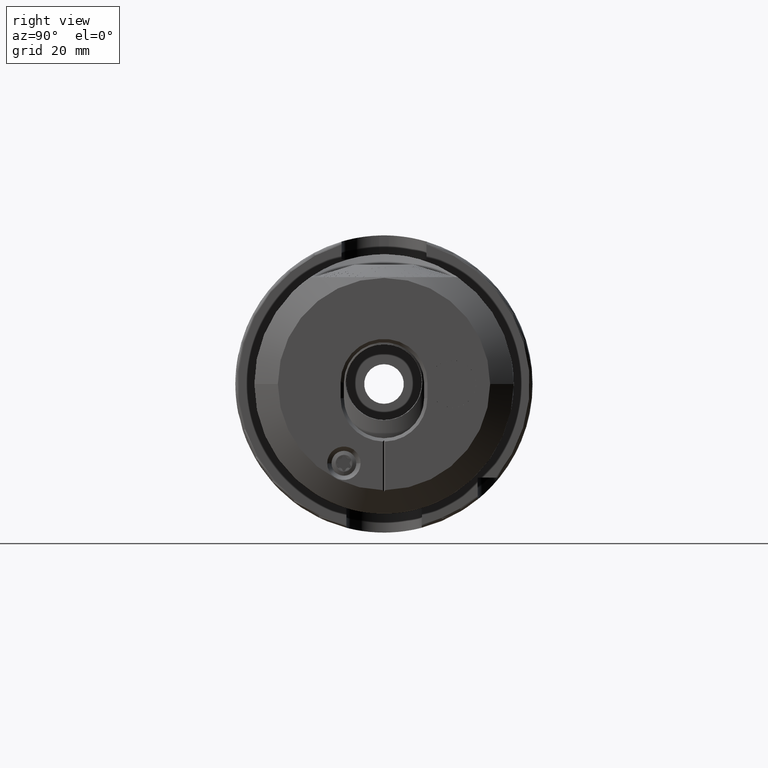
[diagram: clean part render]
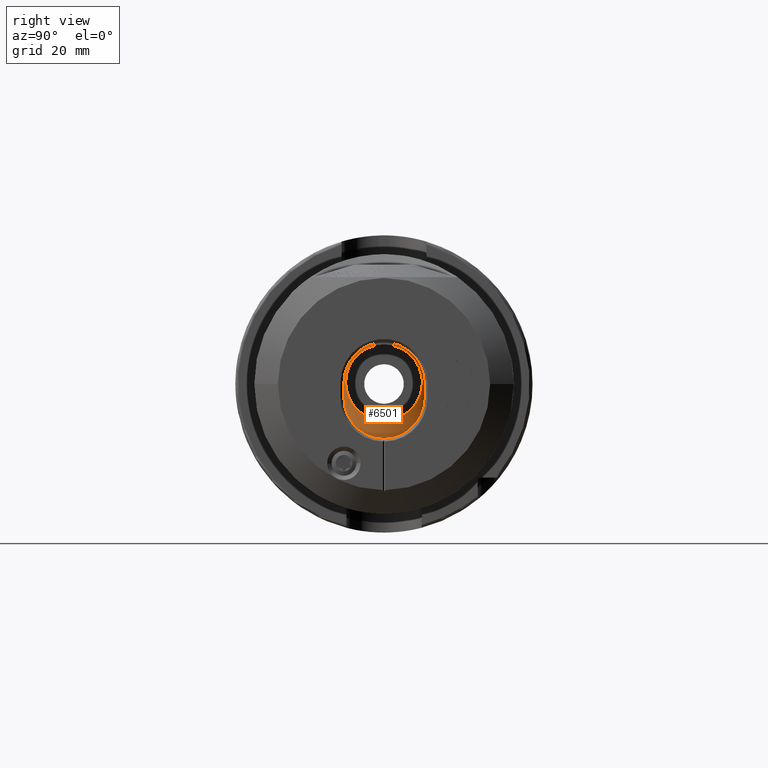
[diagram: same view with one face highlighted and labeled with its STEP entity id]
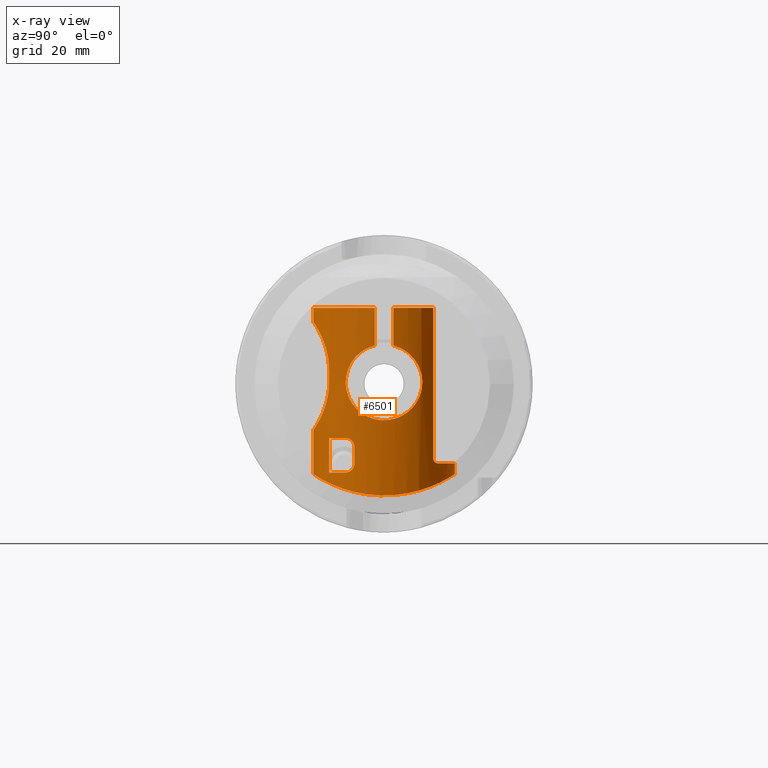
[diagram: x-ray of the same camera — body ghosted, the highlighted face saturated]
A machine part, right view. The second image highlights one B-rep face of the part: STEP entity #6501.
The next image is the same camera in x-ray: the body ghosted, the highlighted face saturated — about 0% of this face is hidden behind the body in this view.
In plain terms, the highlighted cylindrical surface (partial cylindrical patch) has radius 15 mm, axis along (0, -0, -1).
Its self-contained STEP definition (entity closure, byte-faithful):
#151 = CARTESIAN_POINT ( 'NONE',  ( -12.37471025492972600, 9.442288107407167200, -11.65517930191791000 ) ) ;
#181 = CARTESIAN_POINT ( 'NONE',  ( -9.301512783879902100, 14.21343242897927800, -4.809250000802320500 ) ) ;
#310 = CARTESIAN_POINT ( 'NONE',  ( -10.25717086842585100, 13.79683004734305200, -5.886800240852834600 ) ) ;
#324 = CARTESIAN_POINT ( 'NONE',  ( -8.613712463206155700, 14.54900527834374400, 3.675112681663716100 ) ) ;
#346 = CARTESIAN_POINT ( 'NONE',  ( -32.00000000000000000, 10.75975848779969700, 10.45120075800968900 ) ) ;
#530 = CARTESIAN_POINT ( 'NONE',  ( -28.52620174459903200, 13.49993225388090900, -6.539714428379788600 ) ) ;
#587 = ORIENTED_EDGE ( 'NONE', *, *, #5746, .T. ) ;
#640 = CARTESIAN_POINT ( 'NONE',  ( -35.87738500971009600, 5.362626504160033400, -14.01725516954192400 ) ) ;
#681 = CIRCLE ( 'NONE', #1897, 14.99999999999999600 ) ;
#740 = CARTESIAN_POINT ( 'NONE',  ( -33.00000000000000000, -8.342058536182039100E-031, 14.99999999999999600 ) ) ;
#946 = CARTESIAN_POINT ( 'NONE',  ( -15.72500000000000300, 9.470721524846995400, -11.63208639061796700 ) ) ;
#1034 = CARTESIAN_POINT ( 'NONE',  ( -39.26319599122587100, 14.01166443118379400, -5.376887497293374500 ) ) ;
#1293 = CARTESIAN_POINT ( 'NONE',  ( -37.91442549891312600, 11.27437854117504700, 9.940269095810307900 ) ) ;
#1561 = CARTESIAN_POINT ( 'NONE',  ( -39.79923060918474000, 14.99861509563593400, -1.019673894737937300 ) ) ;
#1676 = CARTESIAN_POINT ( 'NONE',  ( -33.16279263568744500, 0.0000000000000000000, 14.99999999999999600 ) ) ;
#1737 = CARTESIAN_POINT ( 'NONE',  ( -18.37920622593016200, 9.201860031619840900, -11.84631666124780300 ) ) ;
#1897 = AXIS2_PLACEMENT_3D ( 'NONE', #18673, #18287, #37077 ) ;
#1987 = CARTESIAN_POINT ( 'NONE',  ( -16.31176837765001500, 9.458289227069835500, -11.64219831928277800 ) ) ;
#2008 = CARTESIAN_POINT ( 'NONE',  ( 0.0000000000000000000, 1.836970198721029600E-015, -15.00000000000000000 ) ) ;
#2009 = VECTOR ( 'NONE', #35996, 1000.000000000000000 ) ;
#2020 = CARTESIAN_POINT ( 'NONE',  ( -34.95000000000000300, 12.68348118623161400, -8.013099669456698500 ) ) ;
#2078 = CARTESIAN_POINT ( 'NONE',  ( -23.16027519750199200, 14.63798168521102700, 3.276173762378265900 ) ) ;
#2207 = CARTESIAN_POINT ( 'NONE',  ( -19.13292420091946500, 13.05484689751725300, -7.387328212118211100 ) ) ;
#2334 = CARTESIAN_POINT ( 'NONE',  ( -21.29407217246319600, 13.77579620944661600, 5.938766541206915900 ) ) ;
#2462 = CARTESIAN_POINT ( 'NONE',  ( -19.04410408005437100, 13.03226876215496000, -7.426991124238788300 ) ) ;
#2591 = CARTESIAN_POINT ( 'NONE',  ( -23.83959737832989500, 14.99791714646631000, 0.2840819914555872700 ) ) ;
#2668 = CARTESIAN_POINT ( 'NONE',  ( -13.11324154752043600, 9.468277819591973500, -11.63407602955133900 ) ) ;
#2809 = VERTEX_POINT ( 'NONE', #6898 ) ;
#2849 = LINE ( 'NONE', #17422, #6175 ) ;
#2875 = ORIENTED_EDGE ( 'NONE', *, *, #20405, .T. ) ;
#3088 = CARTESIAN_POINT ( 'NONE',  ( -28.30593880238340500, 13.42118498889231200, -6.702242767157170700 ) ) ;
#3218 = CARTESIAN_POINT ( 'NONE',  ( -12.73633261386497800, 9.458163387414737500, -11.64229983125459400 ) ) ;
#3243 = CARTESIAN_POINT ( 'NONE',  ( -12.63198848006419400, 13.01422426244601400, -7.458591699829690400 ) ) ;
#3260 = CARTESIAN_POINT ( 'NONE',  ( -32.00000000000000000, 10.75975848779969700, 10.45120075800968900 ) ) ;
#3377 = CARTESIAN_POINT ( 'NONE',  ( -12.37847949638197100, 13.07742610568231500, -7.348109774336633000 ) ) ;
#3388 = VERTEX_POINT ( 'NONE', #17202 ) ;
#3395 = CARTESIAN_POINT ( 'NONE',  ( -14.03540588863491000, 12.70960542757835700, 7.974425350658122200 ) ) ;
#3523 = CARTESIAN_POINT ( 'NONE',  ( -8.049118419280947700, 14.84112780363143000, 2.188678712657428500 ) ) ;
#3593 = CARTESIAN_POINT ( 'NONE',  ( -35.26683763278331400, 1.004627370038822600, -14.97480875451876900 ) ) ;
#3630 = VERTEX_POINT ( 'NONE', #946 ) ;
#3632 = VERTEX_POINT ( 'NONE', #19170 ) ;
#3717 = CARTESIAN_POINT ( 'NONE',  ( -37.04506917630257600, 9.161915042311381500, -11.88661565863466400 ) ) ;
#3740 = CARTESIAN_POINT ( 'NONE',  ( -9.690437268659373200, 8.975265734551207700, -12.01854373297700800 ) ) ;
#3910 = CARTESIAN_POINT ( 'NONE',  ( -9.572688480611443400, 14.08864182249268600, 5.160921636131780200 ) ) ;
#4236 = CARTESIAN_POINT ( 'NONE',  ( -39.80037293001903700, 15.00067127447567600, 0.4789663086088108400 ) ) ;
#4440 = VERTEX_POINT ( 'NONE', #36360 ) ;
#4470 = VERTEX_POINT ( 'NONE', #26863 ) ;
#4497 = CARTESIAN_POINT ( 'NONE',  ( -36.22546301376076600, 6.702076909008169100, 13.42823656979112800 ) ) ;
#4506 = CARTESIAN_POINT ( 'NONE',  ( -33.16279263568744500, 1.836970198721029200E-015, -14.99999999999999600 ) ) ;
#4761 = CARTESIAN_POINT ( 'NONE',  ( -39.36910348450332000, 14.21353068008605500, 4.895005375146374700 ) ) ;
#4799 = CARTESIAN_POINT ( 'NONE',  ( -25.64666289508045000, 2.648321990101079900, -14.77911398047497500 ) ) ;
#4932 = CARTESIAN_POINT ( 'NONE',  ( -18.05271592443200700, 9.266080820817148100, -11.79593140214900700 ) ) ;
#5018 = CARTESIAN_POINT ( 'NONE',  ( -16.84629768831189300, 12.64449151875729000, 8.070453684743412700 ) ) ;
#5141 = CARTESIAN_POINT ( 'NONE',  ( -23.42133161734608000, 14.77207011583307200, 2.654647613718924300 ) ) ;
#5184 = CARTESIAN_POINT ( 'NONE',  ( -16.02870361605151200, 9.467416094030872000, -11.63477686058441300 ) ) ;
#5214 = CARTESIAN_POINT ( 'NONE',  ( -32.94999999999999600, 13.63589014329463800, -6.249999999999999100 ) ) ;
#5245 = CARTESIAN_POINT ( 'NONE',  ( -34.94999999999999600, 12.52746981636754400, -8.250000000000000000 ) ) ;
#5264 = CARTESIAN_POINT ( 'NONE',  ( -23.26652041267151800, 14.69522909442261800, -3.009068004769385000 ) ) ;
#5425 = CARTESIAN_POINT ( 'NONE',  ( -33.16279263568744500, 14.86999999999999900, 1.970558296524081100 ) ) ;
#5526 = CARTESIAN_POINT ( 'NONE',  ( -18.95672752069706500, 13.01040371912945500, -7.465228634356815700 ) ) ;
#5657 = CARTESIAN_POINT ( 'NONE',  ( -21.58112060954452700, 13.89621759629753200, -5.647810274143751000 ) ) ;
#5731 = CARTESIAN_POINT ( 'NONE',  ( -13.01545317345302300, 9.465969491415521000, -11.63595416931169900 ) ) ;
#5746 = EDGE_CURVE ( 'NONE', #14436, #25952, #15475, .T. ) ;
#5822 = EDGE_CURVE ( 'NONE', #16903, #4470, #30087, .T. ) ;
#5869 = CARTESIAN_POINT ( 'NONE',  ( -10.56524652536335800, 9.200118834594839300, -11.84766900639834500 ) ) ;
#5893 = CARTESIAN_POINT ( 'NONE',  ( -11.19065235285043200, 13.43883049609872400, -6.669999077173130800 ) ) ;
#5914 = ORIENTED_EDGE ( 'NONE', *, *, #21015, .T. ) ;
#6001 = CARTESIAN_POINT ( 'NONE',  ( -12.75112070785519900, 9.458646697894318200, -11.64190717801716700 ) ) ;
#6005 = CARTESIAN_POINT ( 'NONE',  ( -27.60000000000000100, 12.68370871509590500, -8.012754171156117900 ) ) ;
#6132 = CARTESIAN_POINT ( 'NONE',  ( -11.56722124388049300, 9.366643695439551100, -11.71606616442665100 ) ) ;
#6175 = VECTOR ( 'NONE', #29028, 1000.000000000000000 ) ;
#6293 = CARTESIAN_POINT ( 'NONE',  ( -15.81779772666971900, 12.61074465361038400, -8.122137605423647600 ) ) ;
#6373 = ORIENTED_EDGE ( 'NONE', *, *, #18984, .F. ) ;
#6432 = CARTESIAN_POINT ( 'NONE',  ( -8.343939833303654300, 14.68705706270461800, -3.055363721445292200 ) ) ;
#6501 = ADVANCED_FACE ( 'NONE', ( #12632, #27340 ), #37386, .T. ) ;
#6560 = ORIENTED_EDGE ( 'NONE', *, *, #15682, .T. ) ;
#6578 = CARTESIAN_POINT ( 'NONE',  ( -8.823708505305987200, 14.44308259496676800, 4.067995332871380900 ) ) ;
#6651 = CARTESIAN_POINT ( 'NONE',  ( -35.51200897982335600, 3.473846924715372700, -14.60063444913102000 ) ) ;
#6802 = CARTESIAN_POINT ( 'NONE',  ( -9.456935181929498700, 8.903829153112196700, -12.07156678303612900 ) ) ;
#6847 = EDGE_CURVE ( 'NONE', #27125, #38297, #35467, .T. ) ;
#6898 = CARTESIAN_POINT ( 'NONE',  ( 0.0000000000000000000, 14.86999999999999600, -1.970558296524135900 ) ) ;
#7045 = CARTESIAN_POINT ( 'NONE',  ( -34.94999999999999600, 0.0000000000000000000, 0.0000000000000000000 ) ) ;
#7098 = ORIENTED_EDGE ( 'NONE', *, *, #32087, .T. ) ;
#7175 = CARTESIAN_POINT ( 'NONE',  ( -39.50776938995631600, 14.46746917463244800, -3.969233104569034800 ) ) ;
#7235 = CARTESIAN_POINT ( 'NONE',  ( -27.60000000000000100, 12.52746981636754400, -8.250000000000000000 ) ) ;
#7301 = ORIENTED_EDGE ( 'NONE', *, *, #27116, .F. ) ;
#7306 = CARTESIAN_POINT ( 'NONE',  ( -38.96574481950088400, 13.44445597198853500, 6.725484044566708300 ) ) ;
#7316 = EDGE_CURVE ( 'NONE', #2809, #28313, #7360, .T. ) ;
#7360 = CIRCLE ( 'NONE', #26411, 15.00000000000000000 ) ;
#7371 = LINE ( 'NONE', #4506, #25413 ) ;
#7442 = CARTESIAN_POINT ( 'NONE',  ( -37.33468301194275100, 9.916043255541142200, 11.29569153885971400 ) ) ;
#7567 = CARTESIAN_POINT ( 'NONE',  ( -38.20321773367927400, 11.89736935989017900, 9.186373923583172300 ) ) ;
#7737 = CARTESIAN_POINT ( 'NONE',  ( -15.80000000000000100, 12.61073184761641400, 8.122157488470223900 ) ) ;
#7750 = VERTEX_POINT ( 'NONE', #31894 ) ;
#7825 = CARTESIAN_POINT ( 'NONE',  ( -18.87463983517932700, 12.99072222678592100, 7.499423482753524400 ) ) ;
#8122 = CARTESIAN_POINT ( 'NONE',  ( -16.14385292318204200, 9.464437130269914200, -11.63720035266794100 ) ) ;
#8202 = CARTESIAN_POINT ( 'NONE',  ( -23.73637437069690000, 14.94103583059491800, 1.354633808849409000 ) ) ;
#8246 = CARTESIAN_POINT ( 'NONE',  ( -16.00256592184154100, 9.467954163437106300, -11.63433900044847900 ) ) ;
#8333 = CARTESIAN_POINT ( 'NONE',  ( -22.76253377398981600, 14.43660420948720700, -4.097778502275449600 ) ) ;
#8451 = CARTESIAN_POINT ( 'NONE',  ( -23.63571037642151400, 14.88832168430319500, -1.846012965201699700 ) ) ;
#8479 = DIRECTION ( 'NONE',  ( -1.000000000000000000, -0.0000000000000000000, -0.0000000000000000000 ) ) ;
#8497 = CARTESIAN_POINT ( 'NONE',  ( -15.72500000000000300, 9.470721524846995400, -11.63208639061796700 ) ) ;
#8577 = CARTESIAN_POINT ( 'NONE',  ( -16.34518371495332900, 12.61153820627699300, -8.120905504893725500 ) ) ;
#8600 = EDGE_LOOP ( 'NONE', ( #16818, #7098, #28419, #12716, #38920, #587 ) ) ;
#8677 = CARTESIAN_POINT ( 'NONE',  ( -13.22500000000000500, 9.470721524846995400, -11.63208639061796700 ) ) ;
#8711 = CARTESIAN_POINT ( 'NONE',  ( -16.86834702333775500, 12.64625819601120000, -8.067708542220058700 ) ) ;
#8792 = CARTESIAN_POINT ( 'NONE',  ( -12.73093032649298100, 9.457983537778782000, -11.64244593739096200 ) ) ;
#8795 = LINE ( 'NONE', #31663, #21154 ) ;
#8922 = CARTESIAN_POINT ( 'NONE',  ( -10.08456779257387100, 9.084387241114933800, -11.93634241790288900 ) ) ;
#8950 = CARTESIAN_POINT ( 'NONE',  ( -7.995781715074593300, 14.87000027478312900, -1.967340130702308400 ) ) ;
#9059 = CARTESIAN_POINT ( 'NONE',  ( -12.29608340601489200, 9.437524914697769800, -11.65903624070580900 ) ) ;
#9192 = CIRCLE ( 'NONE', #38413, 14.99999999999999600 ) ;
#9198 = CARTESIAN_POINT ( 'NONE',  ( -11.31181784046592900, 9.330559784489374000, -11.74481669007502100 ) ) ;
#9339 = CARTESIAN_POINT ( 'NONE',  ( -12.24019946025874400, 9.433836771450057100, -11.66202070917028200 ) ) ;
#9381 = CARTESIAN_POINT ( 'NONE',  ( -12.58427156892502600, 13.02574113321663400, 7.438463465762871400 ) ) ;
#9517 = CARTESIAN_POINT ( 'NONE',  ( -10.50693042740439700, 13.69563638512199200, 6.120229987738162500 ) ) ;
#9643 = CARTESIAN_POINT ( 'NONE',  ( -11.19425196073186900, 13.43717739917247500, 6.673309280938656100 ) ) ;
#9718 = CARTESIAN_POINT ( 'NONE',  ( -35.59054091683317000, 3.952574254642987800, -14.47828545558218500 ) ) ;
#9803 = CARTESIAN_POINT ( 'NONE',  ( -32.33954457782007100, 10.71162981452329500, 10.50106643174602200 ) ) ;
#9850 = CARTESIAN_POINT ( 'NONE',  ( -38.72146356862732100, 12.96001689746479500, -7.567959511066813900 ) ) ;
#9873 = CARTESIAN_POINT ( 'NONE',  ( -9.925950319996562900, 9.042666465987739600, -11.96801307878885500 ) ) ;
#9912 = CARTESIAN_POINT ( 'NONE',  ( -9.303196514008631000, 14.21289957562482800, 4.810894566138291100 ) ) ;
#10119 = DIRECTION ( 'NONE',  ( 1.000000000000000000, 0.0000000000000000000, 0.0000000000000000000 ) ) ;
#10281 = CARTESIAN_POINT ( 'NONE',  ( -29.60000000000000100, 13.63589014329463800, -6.250000000000000000 ) ) ;
#10374 = CARTESIAN_POINT ( 'NONE',  ( -39.68996423056065500, 14.80124967112058900, 2.484156521984479200 ) ) ;
#10628 = CARTESIAN_POINT ( 'NONE',  ( -20.48865943784829100, 13.46818800824440400, 6.605601013799388400 ) ) ;
#10634 = CARTESIAN_POINT ( 'NONE',  ( -35.76721333558560200, 4.923664618082836100, 14.20208119251670300 ) ) ;
#10710 = EDGE_LOOP ( 'NONE', ( #23242, #10763, #37317, #7301, #13942, #6560, #12855, #6373, #36126, #31705, #5914, #30593, #2875, #23062, #13208, #32530, #22058 ) ) ;
#10763 = ORIENTED_EDGE ( 'NONE', *, *, #24288, .T. ) ;
#10893 = CARTESIAN_POINT ( 'NONE',  ( 0.0000000000000000000, 0.0000000000000000000, 0.0000000000000000000 ) ) ;
#10894 = CARTESIAN_POINT ( 'NONE',  ( -19.84479998704405200, 13.25029359698699800, 7.038034633997599000 ) ) ;
#10942 = CARTESIAN_POINT ( 'NONE',  ( -17.06630112142558200, 9.406496807680587900, -11.68413189879576400 ) ) ;
#11073 = CARTESIAN_POINT ( 'NONE',  ( -16.56141283805834500, 9.444693384623951400, -11.65323154533292900 ) ) ;
#11120 = DIRECTION ( 'NONE',  ( 0.0000000000000000000, 0.0000000000000000000, 1.000000000000000000 ) ) ;
#11209 = CARTESIAN_POINT ( 'NONE',  ( -24.93698742818123600, 4.479040343463493600, -14.32916195372630200 ) ) ;
#11249 = EDGE_CURVE ( 'NONE', #33915, #14436, #24540, .T. ) ;
#11327 = CARTESIAN_POINT ( 'NONE',  ( -15.98688912521297900, 9.468252203597098000, -11.63409645073987900 ) ) ;
#11403 = CARTESIAN_POINT ( 'NONE',  ( -22.17719875052162900, 14.15849888191035600, -4.958123720851731700 ) ) ;
#11486 = DIRECTION ( 'NONE',  ( -1.000000000000000000, -0.0000000000000000000, -0.0000000000000000000 ) ) ;
#11534 = CARTESIAN_POINT ( 'NONE',  ( -20.71122507227158800, 13.54472043614789100, -6.453281665846507300 ) ) ;
#11663 = CARTESIAN_POINT ( 'NONE',  ( -21.93079567543416900, 14.04773796511347300, -5.260473212420335700 ) ) ;
#11699 = DIRECTION ( 'NONE',  ( 1.000000000000000000, 0.0000000000000000000, 0.0000000000000000000 ) ) ;
#11748 = CARTESIAN_POINT ( 'NONE',  ( -33.16279263568744500, 13.63589014329463800, -6.250000000000000000 ) ) ;
#11796 = CARTESIAN_POINT ( 'NONE',  ( -19.85003798511983000, 13.25703541031778200, -7.019293506071106100 ) ) ;
#11846 = DIRECTION ( 'NONE',  ( -1.000000000000000000, -0.0000000000000000000, -0.0000000000000000000 ) ) ;
#11849 = VECTOR ( 'NONE', #11486, 1000.000000000000000 ) ;
#12146 = CARTESIAN_POINT ( 'NONE',  ( -12.62908162537815200, 9.454520470804155300, -11.64525909087238800 ) ) ;
#12299 = CARTESIAN_POINT ( 'NONE',  ( -8.613890447585888000, 14.54882006451633500, -3.675786346374025000 ) ) ;
#12310 = LINE ( 'NONE', #16325, #29426 ) ;
#12405 = CARTESIAN_POINT ( 'NONE',  ( -12.72499674483410100, 9.457784282483004300, -11.64260780419292600 ) ) ;
#12540 = CARTESIAN_POINT ( 'NONE',  ( -3.040662677517808300, 1.339647654697245100, -14.95463641401880900 ) ) ;
#12543 = CARTESIAN_POINT ( 'NONE',  ( -29.45724122062253200, 13.63589014329463800, -6.250000000000000000 ) ) ;
#12601 = CARTESIAN_POINT ( 'NONE',  ( -32.17302745686490800, 10.75975848779969700, 10.45120075800968900 ) ) ;
#12632 = FACE_BOUND ( 'NONE', #8600, .T. ) ;
#12703 = CARTESIAN_POINT ( 'NONE',  ( -14.91189406276758900, 12.61090377846208800, 8.121890542921075700 ) ) ;
#12716 = ORIENTED_EDGE ( 'NONE', *, *, #27635, .T. ) ;
#12855 = ORIENTED_EDGE ( 'NONE', *, *, #5822, .T. ) ;
#12917 = CARTESIAN_POINT ( 'NONE',  ( -3.497775075391529300, 3.277584468895274200, -14.65073810124393100 ) ) ;
#12978 = CARTESIAN_POINT ( 'NONE',  ( -32.60659177759594500, 10.56099463395535700, 10.65254907657756400 ) ) ;
#13028 = CARTESIAN_POINT ( 'NONE',  ( -35.38373629514835300, 2.501480682631573900, -14.79826791107415000 ) ) ;
#13208 = ORIENTED_EDGE ( 'NONE', *, *, #27206, .T. ) ;
#13411 = CARTESIAN_POINT ( 'NONE',  ( -35.31957728896112800, 2.020479642635665900, 14.89718515274300400 ) ) ;
#13416 = B_SPLINE_CURVE_WITH_KNOTS ( 'NONE', 3,
 ( #20887, #6005, #36506, #27283, #18239, #23924, #21285, #3088, #530, #28476, #37026, #37700, #12543, #10281 ),
 .UNSPECIFIED., .F., .F.,
 ( 4, 2, 2, 2, 2, 2, 4 ),
 ( 0.0000000000000000000, 0.0008365893532451035200, 0.001254884029867655200, 0.001673178706490207000, 0.002509768059735308200, 0.002928062736357854400, 0.003346357412980399800 ),
 .UNSPECIFIED. ) ;
#13677 = CARTESIAN_POINT ( 'NONE',  ( -39.73143902152648400, 14.87629482052965100, 1.987986240517895200 ) ) ;
#13942 = ORIENTED_EDGE ( 'NONE', *, *, #31527, .F. ) ;
#14199 = LINE ( 'NONE', #11748, #11849 ) ;
#14234 = CARTESIAN_POINT ( 'NONE',  ( -19.33595533125905400, 8.957289820077248200, -12.03260462429249100 ) ) ;
#14265 = CARTESIAN_POINT ( 'NONE',  ( -34.77688690293997100, 13.03316371444367400, -7.426624616697731400 ) ) ;
#14281 = CARTESIAN_POINT ( 'NONE',  ( -33.16279263568744500, 0.0000000000000000000, 0.0000000000000000000 ) ) ;
#14319 = CARTESIAN_POINT ( 'NONE',  ( -33.00000000000000700, 9.615697287706492300, 11.51253081086838900 ) ) ;
#14403 = LINE ( 'NONE', #24150, #19147 ) ;
#14436 = VERTEX_POINT ( 'NONE', #5245 ) ;
#14438 = CARTESIAN_POINT ( 'NONE',  ( -20.07012517554161200, 13.32699564795452600, -6.886019241001230600 ) ) ;
#14484 = CARTESIAN_POINT ( 'NONE',  ( -15.83401469211616700, 9.470226504250218700, -11.63248943114429100 ) ) ;
#14565 = CARTESIAN_POINT ( 'NONE',  ( -22.93515150690206300, 14.52371625762376600, 3.751785855399894400 ) ) ;
#14637 = CARTESIAN_POINT ( 'NONE',  ( -33.50528959148719100, 13.60197612074665400, -6.323550038490031600 ) ) ;
#14693 = CARTESIAN_POINT ( 'NONE',  ( -15.81779772666971900, 12.61074465361038400, -8.122137605423647600 ) ) ;
#14830 = CARTESIAN_POINT ( 'NONE',  ( -23.00908281494637500, 14.56234292732716000, -3.632569798116510400 ) ) ;
#14935 = CARTESIAN_POINT ( 'NONE',  ( -14.92469141842215700, 12.60940080506639700, -8.124224116594058700 ) ) ;
#15017 = DIRECTION ( 'NONE',  ( 2.312964634635743400E-015, 0.0000000000000000000, 1.000000000000000000 ) ) ;
#15176 = CARTESIAN_POINT ( 'NONE',  ( -12.25779724954103000, 9.435028886289462200, -11.66105623400024700 ) ) ;
#15205 = CARTESIAN_POINT ( 'NONE',  ( -11.55596331639395100, 13.31540267850749800, -6.910655295694351900 ) ) ;
#15310 = CARTESIAN_POINT ( 'NONE',  ( -12.75876032263488800, 9.458890738963278400, -11.64170889899571500 ) ) ;
#15338 = CARTESIAN_POINT ( 'NONE',  ( -9.570112524705786300, 14.08956860154710400, -5.158307544375586100 ) ) ;
#15446 = EDGE_CURVE ( 'NONE', #25952, #7750, #8795, .T. ) ;
#15475 = CIRCLE ( 'NONE', #34322, 14.99999999999999600 ) ;
#15511 = CARTESIAN_POINT ( 'NONE',  ( -32.91740811288411100, 10.12007497347483400, 11.07299942924379400 ) ) ;
#15583 = CARTESIAN_POINT ( 'NONE',  ( -5.501553195734042700, 6.547977134759567400, -13.50372027869112800 ) ) ;
#15627 = CARTESIAN_POINT ( 'NONE',  ( -12.33230592763722400, 13.08976507834922700, 7.325898102663033200 ) ) ;
#15682 = EDGE_CURVE ( 'NONE', #38019, #16903, #7371, .T. ) ;
#15709 = CARTESIAN_POINT ( 'NONE',  ( -4.012977060402155500, 4.478978919525311600, -14.32918122924097800 ) ) ;
#15837 = CARTESIAN_POINT ( 'NONE',  ( -2.975000281882126200, -8.037023691618330800E-008, -14.99999999999996800 ) ) ;
#15876 = CARTESIAN_POINT ( 'NONE',  ( -11.55932706077844000, 13.31388267561485400, 6.913569610355282600 ) ) ;
#15898 = CARTESIAN_POINT ( 'NONE',  ( -33.00000000000000700, 9.615697287706492300, 11.51253081086838900 ) ) ;
#16004 = CARTESIAN_POINT ( 'NONE',  ( -12.73693806018262400, 12.98826043652027500, 7.503713201468429800 ) ) ;
#16075 = CARTESIAN_POINT ( 'NONE',  ( -38.95580543777034400, 13.42259000869042800, -6.713428826041393900 ) ) ;
#16196 = CARTESIAN_POINT ( 'NONE',  ( 0.0000000000000000000, 10.75975848779970800, 10.45120075800969100 ) ) ;
#16201 = CARTESIAN_POINT ( 'NONE',  ( -36.89998518535309600, 8.772119913261148500, -12.17714459795240600 ) ) ;
#16325 = CARTESIAN_POINT ( 'NONE',  ( -15.72500000000000300, 9.470721524846995400, -11.63208639061796700 ) ) ;
#16465 = DIRECTION ( 'NONE',  ( 1.000000000000000000, 0.0000000000000000000, 0.0000000000000000000 ) ) ;
#16720 = CARTESIAN_POINT ( 'NONE',  ( -18.39376546854777300, 12.88240825911590200, 7.684172480608359600 ) ) ;
#16818 = ORIENTED_EDGE ( 'NONE', *, *, #15446, .T. ) ;
#16872 = DIRECTION ( 'NONE',  ( -1.000000000000000000, -0.0000000000000000000, -0.0000000000000000000 ) ) ;
#16901 = CARTESIAN_POINT ( 'NONE',  ( -25.90933137499242300, 1.339707740869047000, -14.95463147590669800 ) ) ;
#16903 = VERTEX_POINT ( 'NONE', #35222 ) ;
#17154 = CARTESIAN_POINT ( 'NONE',  ( -20.85956009419443200, 8.386739903228136200, -12.44196131546152800 ) ) ;
#17202 = CARTESIAN_POINT ( 'NONE',  ( -15.81779772666971900, 12.61074465361038400, -8.122137605423647600 ) ) ;
#17240 = CARTESIAN_POINT ( 'NONE',  ( -18.68156714131722000, 12.94526957108658400, 7.577696884003058700 ) ) ;
#17286 = CARTESIAN_POINT ( 'NONE',  ( -19.02011101766267800, 9.047576626654860700, -11.96456449959164400 ) ) ;
#17313 = CARTESIAN_POINT ( 'NONE',  ( -34.50972131723457900, 13.27158190225885200, -6.991206412856502800 ) ) ;
#17363 = CARTESIAN_POINT ( 'NONE',  ( -23.24033201524497400, 14.68168640363501100, -3.074427774429289600 ) ) ;
#17422 = CARTESIAN_POINT ( 'NONE',  ( -33.16279263568744500, 1.836970198721029200E-015, -14.99999999999999600 ) ) ;
#17487 = CARTESIAN_POINT ( 'NONE',  ( -18.41699671063273400, 12.87814185416362100, -7.695180170824587900 ) ) ;
#17615 = CARTESIAN_POINT ( 'NONE',  ( -23.57854058489727200, 14.85573262656671600, 2.141388782252676000 ) ) ;
#17962 = CARTESIAN_POINT ( 'NONE',  ( -10.89213410063308800, 9.264708396911425200, -11.79701917996356300 ) ) ;
#18161 = CARTESIAN_POINT ( 'NONE',  ( -34.94999999999999600, 9.499999999999996400, -11.60818676624389800 ) ) ;
#18236 = CARTESIAN_POINT ( 'NONE',  ( -11.89978615000342700, 9.406032097120890600, -11.68448397177039900 ) ) ;
#18239 = CARTESIAN_POINT ( 'NONE',  ( -27.82687566056452500, 13.09545525074273800, -7.316039765616937800 ) ) ;
#18287 = DIRECTION ( 'NONE',  ( 1.000000000000000000, 0.0000000000000000000, 0.0000000000000000000 ) ) ;
#18370 = CARTESIAN_POINT ( 'NONE',  ( -12.73998870939843900, 9.458283817396496900, -11.64220199334576800 ) ) ;
#18521 = CARTESIAN_POINT ( 'NONE',  ( -10.67113537366319800, 13.63186168372424400, -6.260599830200114900 ) ) ;
#18556 = CARTESIAN_POINT ( 'NONE',  ( -32.86457792182653700, 10.24094575479745500, 10.96111523956345300 ) ) ;
#18566 = CARTESIAN_POINT ( 'NONE',  ( -32.94999999999999600, 13.63589014329463800, -6.249999999999999100 ) ) ;
#18673 = CARTESIAN_POINT ( 'NONE',  ( -27.60000000000000100, 0.0000000000000000000, 0.0000000000000000000 ) ) ;
#18732 = CARTESIAN_POINT ( 'NONE',  ( -35.33399545581212200, 2.007843155564091700, -14.87355839231814200 ) ) ;
#18984 = EDGE_CURVE ( 'NONE', #35701, #4470, #32445, .T. ) ;
#18994 = DIRECTION ( 'NONE',  ( 0.0000000000000000000, 0.0000000000000000000, 1.000000000000000000 ) ) ;
#19017 = CARTESIAN_POINT ( 'NONE',  ( -4.328734882813376000, 5.039379431839194000, -14.13922986332735500 ) ) ;
#19147 = VECTOR ( 'NONE', #11699, 1000.000000000000000 ) ;
#19170 = CARTESIAN_POINT ( 'NONE',  ( -2.975000281882126200, -8.037023691618330800E-008, -14.99999999999996800 ) ) ;
#19263 = CARTESIAN_POINT ( 'NONE',  ( -38.19903789311809600, 11.88860599696093200, -9.198515903003199800 ) ) ;
#19368 = EDGE_CURVE ( 'NONE', #34022, #26536, #35217, .T. ) ;
#19415 = VERTEX_POINT ( 'NONE', #7235 ) ;
#19472 = EDGE_CURVE ( 'NONE', #19591, #2809, #35332, .T. ) ;
#19591 = VERTEX_POINT ( 'NONE', #22897 ) ;
#19621 = CARTESIAN_POINT ( 'NONE',  ( -7.995596635062839600, 14.87000054915047700, 1.966890422327418400 ) ) ;
#19649 = CARTESIAN_POINT ( 'NONE',  ( -18.84110738707434500, 12.98267674454527100, 7.513343498649738300 ) ) ;
#19654 = CARTESIAN_POINT ( 'NONE',  ( -37.04186330441466200, 9.177844068000188900, 11.90387424293843200 ) ) ;
#19724 = CARTESIAN_POINT ( 'NONE',  ( -33.16279263568744500, 14.86999999999999900, -1.970558296524081100 ) ) ;
#19965 = CARTESIAN_POINT ( 'NONE',  ( -20.26966402523851600, 8.645130273190082100, -12.26083938485415100 ) ) ;
#20078 = LINE ( 'NONE', #5425, #33402 ) ;
#20092 = CARTESIAN_POINT ( 'NONE',  ( -23.44841219508788300, 6.548019986584352900, -13.50369959434838300 ) ) ;
#20250 = CARTESIAN_POINT ( 'NONE',  ( -33.64034588471835000, 13.58139375609689000, -6.367858850710065100 ) ) ;
#20301 = CARTESIAN_POINT ( 'NONE',  ( -23.77598902170891600, 14.96277355441130500, 1.089579752588330600 ) ) ;
#20345 = CARTESIAN_POINT ( 'NONE',  ( -24.62123575439198200, 5.039435441224244800, -14.13920989497645100 ) ) ;
#20405 = EDGE_CURVE ( 'NONE', #38297, #34022, #20078, .T. ) ;
#20426 = CARTESIAN_POINT ( 'NONE',  ( -19.51032636221947700, 13.15738169548814300, -7.203344654945473400 ) ) ;
#20547 = CARTESIAN_POINT ( 'NONE',  ( -23.82597594916027000, 14.99037562836241100, 0.5539493033986585500 ) ) ;
#20620 = CARTESIAN_POINT ( 'NONE',  ( -34.58884807886310100, 13.21567754422668600, -7.096563650379329700 ) ) ;
#20675 = CARTESIAN_POINT ( 'NONE',  ( -22.33121891818492300, 14.23025399910539700, -4.748863396615911700 ) ) ;
#20887 = CARTESIAN_POINT ( 'NONE',  ( -27.60000000000000100, 12.52746981636754400, -8.250000000000000000 ) ) ;
#21015 = EDGE_CURVE ( 'NONE', #22556, #27125, #14403, .T. ) ;
#21154 = VECTOR ( 'NONE', #10119, 1000.000000000000000 ) ;
#21178 = CARTESIAN_POINT ( 'NONE',  ( -9.942792477670527900, 13.92852715119289900, -5.568113361340272700 ) ) ;
#21282 = CARTESIAN_POINT ( 'NONE',  ( -11.65105243854457700, 9.377242334164373400, -11.70758205527564800 ) ) ;
#21285 = CARTESIAN_POINT ( 'NONE',  ( -28.03724565375616300, 13.26965606316346000, -6.994876276200028700 ) ) ;
#21310 = CARTESIAN_POINT ( 'NONE',  ( -8.823401745319955600, 14.44305943469291600, -4.067994733195301500 ) ) ;
#21418 = CARTESIAN_POINT ( 'NONE',  ( -12.78233401439949200, 9.459629223401941900, -11.64110885432163500 ) ) ;
#21579 = CARTESIAN_POINT ( 'NONE',  ( -8.113089813828967300, 14.80723792526949700, -2.407037678061009000 ) ) ;
#21597 = CARTESIAN_POINT ( 'NONE',  ( -15.80000000000000100, 12.61073184761641400, 8.122157488470223900 ) ) ;
#21725 = CARTESIAN_POINT ( 'NONE',  ( -7.995596635062839600, 14.87000054915047700, 1.966890422327418400 ) ) ;
#21852 = CARTESIAN_POINT ( 'NONE',  ( -8.343340343433654400, 14.68736023499216800, 3.053923915329347600 ) ) ;
#21919 = CARTESIAN_POINT ( 'NONE',  ( -36.21795345496971700, 6.720773807087713400, -13.44604110802292100 ) ) ;
#22052 = CARTESIAN_POINT ( 'NONE',  ( -39.47110312786553300, 14.39970671919350000, -4.208271056970549900 ) ) ;
#22058 = ORIENTED_EDGE ( 'NONE', *, *, #19472, .T. ) ;
#22186 = DIRECTION ( 'NONE',  ( -1.000000000000000000, -0.0000000000000000000, 0.0000000000000000000 ) ) ;
#22307 = CARTESIAN_POINT ( 'NONE',  ( -39.35290911335064800, 14.17999395444333300, -4.916519806005128500 ) ) ;
#22430 = CARTESIAN_POINT ( 'NONE',  ( -39.78690429191303900, 14.97647298525228400, 0.9805579033460366500 ) ) ;
#22556 = VERTEX_POINT ( 'NONE', #3260 ) ;
#22693 = CARTESIAN_POINT ( 'NONE',  ( -19.38840726293170700, 13.11558205547305400, 7.282646732162029400 ) ) ;
#22871 = CARTESIAN_POINT ( 'NONE',  ( -25.97499971588454000, 1.204100110781617800E-005, -14.99999999999987000 ) ) ;
#22897 = CARTESIAN_POINT ( 'NONE',  ( -7.995781715074593300, 14.87000027478312900, -1.967340130702308400 ) ) ;
#22959 = DIRECTION ( 'NONE',  ( -1.000000000000000000, -0.0000000000000000000, -0.0000000000000000000 ) ) ;
#22960 = CARTESIAN_POINT ( 'NONE',  ( -18.58569233306136300, 12.92388497331193500, 7.614061630507796600 ) ) ;
#22965 = CARTESIAN_POINT ( 'NONE',  ( -39.52776524045494000, 14.50519550964178000, 3.948595324584403000 ) ) ;
#23062 = ORIENTED_EDGE ( 'NONE', *, *, #19368, .T. ) ;
#23238 = CARTESIAN_POINT ( 'NONE',  ( -16.18579403611307300, 9.463061243294998100, -11.63831929909778800 ) ) ;
#23242 = ORIENTED_EDGE ( 'NONE', *, *, #7316, .T. ) ;
#23271 = CARTESIAN_POINT ( 'NONE',  ( -34.94999999999999600, 12.52746981636754400, -8.250000000000000000 ) ) ;
#23286 = DIRECTION ( 'NONE',  ( -1.000000000000000000, -0.0000000000000000000, -0.0000000000000000000 ) ) ;
#23321 = CARTESIAN_POINT ( 'NONE',  ( -23.84316297314246600, 14.99988226977319500, 0.1468262379004628700 ) ) ;
#23367 = CARTESIAN_POINT ( 'NONE',  ( -25.97499699320309200, 0.6731453126240698500, -14.99999839095279300 ) ) ;
#23444 = CARTESIAN_POINT ( 'NONE',  ( -21.09857752584898800, 13.69696440217221500, 6.117740384277533700 ) ) ;
#23707 = CARTESIAN_POINT ( 'NONE',  ( -18.98469106536790500, 13.01734742916574400, -7.453112917228184900 ) ) ;
#23771 = EDGE_CURVE ( 'NONE', #39035, #22556, #35140, .T. ) ;
#23808 = AXIS2_PLACEMENT_3D ( 'NONE', #23885, #11846, #30190 ) ;
#23835 = CARTESIAN_POINT ( 'NONE',  ( -22.75010238746545400, 14.43145321916598400, 4.097570271514377400 ) ) ;
#23885 = CARTESIAN_POINT ( 'NONE',  ( 0.0000000000000000000, 0.0000000000000000000, 0.0000000000000000000 ) ) ;
#23924 = CARTESIAN_POINT ( 'NONE',  ( -27.95980671833561700, 13.21465424933892400, -7.098471606389833400 ) ) ;
#24150 = CARTESIAN_POINT ( 'NONE',  ( -33.16279263568744500, 10.75975848779968800, 10.45120075800969800 ) ) ;
#24189 = CARTESIAN_POINT ( 'NONE',  ( -12.88972572996869900, 9.462710361843454300, -11.63860449403378200 ) ) ;
#24288 = EDGE_CURVE ( 'NONE', #28313, #3632, #2849, .T. ) ;
#24540 = B_SPLINE_CURVE_WITH_KNOTS ( 'NONE', 3,
 ( #5214, #29548, #38508, #14637, #20250, #32625, #32377, #17313, #20620, #35955, #14265, #26731, #2020, #23271 ),
 .UNSPECIFIED., .F., .F.,
 ( 4, 2, 2, 2, 2, 2, 4 ),
 ( 0.0000000000000000000, 0.0004207251571173548700, 0.0008414503142347097500, 0.001682900628469418400, 0.002103625785586773200, 0.002524350942704127300, 0.003365801256938833800 ),
 .UNSPECIFIED. ) ;
#24590 = CARTESIAN_POINT ( 'NONE',  ( -2.974999884801235800, 0.6730971842593663800, -15.00000000395111700 ) ) ;
#24613 = CARTESIAN_POINT ( 'NONE',  ( -25.97499971811790000, 8.037026177457142700E-008, -14.99999999999996800 ) ) ;
#24646 = CARTESIAN_POINT ( 'NONE',  ( -32.98462730456591900, 9.874009421025050400, 11.29297001600082600 ) ) ;
#24753 = CARTESIAN_POINT ( 'NONE',  ( -8.113039685781815900, 14.80726838017990600, 2.406833434298483200 ) ) ;
#24879 = CARTESIAN_POINT ( 'NONE',  ( -12.79288078296881400, 12.97491259213179900, 7.526769805377890400 ) ) ;
#24952 = CARTESIAN_POINT ( 'NONE',  ( -39.06464777728395200, 13.63296449518060200, -6.275343684914467700 ) ) ;
#25146 = CARTESIAN_POINT ( 'NONE',  ( -13.06242667622287200, 12.91341607011192000, 7.631883568508370400 ) ) ;
#25350 = VERTEX_POINT ( 'NONE', #8677 ) ;
#25413 = VECTOR ( 'NONE', #16872, 1000.000000000000000 ) ;
#25488 = CARTESIAN_POINT ( 'NONE',  ( -35.58058341440288800, 3.988227352268123300, 14.49491310936468700 ) ) ;
#25932 = CARTESIAN_POINT ( 'NONE',  ( -25.97499971811790000, 8.037026177457142700E-008, -14.99999999999996800 ) ) ;
#25952 = VERTEX_POINT ( 'NONE', #18161 ) ;
#26030 = CARTESIAN_POINT ( 'NONE',  ( -35.24994432064364200, 1.946217299337700800E-016, 14.99999999999999600 ) ) ;
#26358 = EDGE_CURVE ( 'NONE', #19415, #4440, #13416, .T. ) ;
#26406 = CARTESIAN_POINT ( 'NONE',  ( -23.45168379794056400, 14.79152100986165600, -2.495616928333384000 ) ) ;
#26411 = AXIS2_PLACEMENT_3D ( 'NONE', #10893, #22959, #35742 ) ;
#26452 = CARTESIAN_POINT ( 'NONE',  ( -16.01824665083322300, 9.467639365651056200, -11.63459517624850100 ) ) ;
#26536 = VERTEX_POINT ( 'NONE', #7737 ) ;
#26657 = CARTESIAN_POINT ( 'NONE',  ( -21.85275341045418100, 14.01011934245332700, 5.374252780700353500 ) ) ;
#26731 = CARTESIAN_POINT ( 'NONE',  ( -34.90876989924260000, 12.83015000420316200, -7.775582890624562500 ) ) ;
#26788 = CARTESIAN_POINT ( 'NONE',  ( -23.57005267899963400, 14.85357946735305700, -2.107123052809002600 ) ) ;
#26863 = CARTESIAN_POINT ( 'NONE',  ( -35.24994432064364200, 1.946217299337700800E-016, 14.99999999999999600 ) ) ;
#26926 = CARTESIAN_POINT ( 'NONE',  ( -17.90407399762011300, 12.77954990169971300, -7.854862939119801300 ) ) ;
#27008 = CARTESIAN_POINT ( 'NONE',  ( -12.79892293880994600, 9.460130028009158900, -11.64070188106623000 ) ) ;
#27116 = EDGE_CURVE ( 'NONE', #3630, #25350, #12310, .T. ) ;
#27125 = VERTEX_POINT ( 'NONE', #16196 ) ;
#27147 = CARTESIAN_POINT ( 'NONE',  ( -12.54076910690411900, 9.450834623124382700, -11.64825112507484500 ) ) ;
#27170 = CARTESIAN_POINT ( 'NONE',  ( -8.259891919718640500, 14.73051425207184000, -2.839027162366195300 ) ) ;
#27206 = EDGE_CURVE ( 'NONE', #26536, #3388, #34327, .T. ) ;
#27283 = CARTESIAN_POINT ( 'NONE',  ( -27.77111535244508600, 13.03053951813197600, -7.431212111129855000 ) ) ;
#27312 = CARTESIAN_POINT ( 'NONE',  ( -10.17563301868246800, 13.83045541910714100, -5.807397810443585100 ) ) ;
#27340 = FACE_OUTER_BOUND ( 'NONE', #10710, .T. ) ;
#27404 = CARTESIAN_POINT ( 'NONE',  ( -11.44009451561767000, 9.349233004705183700, -11.72995726102044700 ) ) ;
#27538 = CARTESIAN_POINT ( 'NONE',  ( -12.85130910174346900, 9.461657878732907500, -11.63946012101117800 ) ) ;
#27561 = CARTESIAN_POINT ( 'NONE',  ( -12.79045574602992000, 12.97582928150277200, -7.525190137177863100 ) ) ;
#27635 = EDGE_CURVE ( 'NONE', #4440, #33915, #14199, .T. ) ;
#27687 = CARTESIAN_POINT ( 'NONE',  ( -12.95333700518764400, 12.93787965925874400, -7.590375385715415900 ) ) ;
#27726 = CARTESIAN_POINT ( 'NONE',  ( -32.70976035861448800, 10.46055582872532600, 10.75173423229084300 ) ) ;
#27837 = CARTESIAN_POINT ( 'NONE',  ( -10.02154837389290900, 13.89459189786204800, 5.654339141408312800 ) ) ;
#27902 = CARTESIAN_POINT ( 'NONE',  ( -35.24994432064365000, 0.4993319525366089500, -14.99999999999999500 ) ) ;
#28037 = CARTESIAN_POINT ( 'NONE',  ( -39.60613663014506600, 14.64823244492124700, -3.239160543684681300 ) ) ;
#28102 = CARTESIAN_POINT ( 'NONE',  ( -8.259630797730052300, 14.73062081109714700, 2.838459896282520000 ) ) ;
#28311 = CARTESIAN_POINT ( 'NONE',  ( -36.48020601665611200, 7.570691140500453100, -12.98523734798272000 ) ) ;
#28313 = VERTEX_POINT ( 'NONE', #2008 ) ;
#28419 = ORIENTED_EDGE ( 'NONE', *, *, #26358, .T. ) ;
#28434 = CARTESIAN_POINT ( 'NONE',  ( -35.24994432064364200, 1.836970910461249500E-015, -14.99999999999999600 ) ) ;
#28476 = CARTESIAN_POINT ( 'NONE',  ( -28.90870493299504000, 13.58129696609894100, -6.368075190720090500 ) ) ;
#28569 = CARTESIAN_POINT ( 'NONE',  ( -39.74318633568790200, 14.89843392919550300, -2.010637478192260900 ) ) ;
#28702 = CARTESIAN_POINT ( 'NONE',  ( -36.10377448907376400, 6.265245538274615300, 13.63752522317298400 ) ) ;
#28832 = CARTESIAN_POINT ( 'NONE',  ( -18.77730901357168100, 12.96759123618269300, 7.539350337617719300 ) ) ;
#28838 = CARTESIAN_POINT ( 'NONE',  ( -36.62125798422472700, 7.974556618874853300, 12.71378022715564900 ) ) ;
#28962 = CARTESIAN_POINT ( 'NONE',  ( -17.88030618182742500, 12.78418046923262400, 7.846871635576289500 ) ) ;
#29028 = DIRECTION ( 'NONE',  ( -1.000000000000000000, -0.0000000000000000000, -0.0000000000000000000 ) ) ;
#29141 = CARTESIAN_POINT ( 'NONE',  ( -17.39623845034397200, 9.368279293095467300, -11.71493040989484900 ) ) ;
#29270 = CARTESIAN_POINT ( 'NONE',  ( -23.87330050366668000, 6.078957245570171300, -13.72441054570275100 ) ) ;
#29352 = CARTESIAN_POINT ( 'NONE',  ( -17.62251305045601800, 12.74330168491129800, 7.912781387016514700 ) ) ;
#29396 = CARTESIAN_POINT ( 'NONE',  ( -16.08101675515741700, 9.466179061341609500, -11.63578336593025700 ) ) ;
#29426 = VECTOR ( 'NONE', #16465, 1000.000000000000000 ) ;
#29520 = CARTESIAN_POINT ( 'NONE',  ( -15.99733979865027300, 9.468055744421558700, -11.63425633362809600 ) ) ;
#29548 = CARTESIAN_POINT ( 'NONE',  ( -33.09232764756877300, 13.63589014329463600, -6.249999999999999100 ) ) ;
#29607 = CARTESIAN_POINT ( 'NONE',  ( -21.80375093199230800, 13.99157395838672400, -5.408764117440062700 ) ) ;
#29741 = CARTESIAN_POINT ( 'NONE',  ( -23.31591787382101400, 14.72082435927382700, -2.881246011416298100 ) ) ;
#29870 = CARTESIAN_POINT ( 'NONE',  ( -23.18598677970564400, 14.65116085934154600, 3.216763415533161500 ) ) ;
#30083 = CARTESIAN_POINT ( 'NONE',  ( -13.22500000000000500, 9.470721524846995400, -11.63208639061796700 ) ) ;
#30087 = B_SPLINE_CURVE_WITH_KNOTS ( 'NONE', 3,
 ( #28434, #27902, #3593, #18732, #13028, #6651, #9718, #31386, #640, #21919, #28311, #16201, #3717, #37525, #34190, #31251, #19263, #34323, #9850, #16075, #24952, #1034, #22307, #22052, #7175, #37401, #28037, #28569, #1561, #4236, #22430, #13677, #10374, #22965, #4761, #7306, #37659, #7567, #1293, #7442, #19654, #28838, #38053, #4497, #28702, #10634, #25488, #13411, #31912, #26030 ),
 .UNSPECIFIED., .F., .F.,
 ( 4, 2, 2, 2, 2, 2, 2, 2, 2, 2, 2, 2, 2, 2, 2, 2, 2, 2, 2, 2, 2, 2, 2, 2, 4 ),
 ( 0.04792813417157777700, 0.04942194425108106100, 0.05091575433058434500, 0.05240956441008762900, 0.05390337448959092000, 0.05689099464859748900, 0.05838480472810077300, 0.05987861480760406400, 0.06286623496661064600, 0.06436004504611393700, 0.06585385512561722800, 0.06734766520512050500, 0.06809457024487215700, 0.06884147528462381000, 0.07182909544363039200, 0.07332290552313366900, 0.07481671560263697400, 0.07780433576164354200, 0.08079195592065011000, 0.08377957607965669200, 0.08676719623866327400, 0.08826100631816655200, 0.08975481639766984300, 0.09274243655667641100, 0.09573005671568296500 ),
 .UNSPECIFIED. ) ;
#30190 = DIRECTION ( 'NONE',  ( 0.0000000000000000000, 0.0000000000000000000, 1.000000000000000000 ) ) ;
#30194 = CARTESIAN_POINT ( 'NONE',  ( -33.00000000000003600, 0.0000000000000000000, 0.0000000000000000000 ) ) ;
#30216 = CARTESIAN_POINT ( 'NONE',  ( -12.72914320669034900, 9.457923720456237900, -11.64249453098193300 ) ) ;
#30480 = CARTESIAN_POINT ( 'NONE',  ( -11.26712209539786800, 9.323741335895407500, -11.75023053184516400 ) ) ;
#30502 = CARTESIAN_POINT ( 'NONE',  ( -10.50270462495545200, 13.69750038684999500, -6.116063184446090000 ) ) ;
#30593 = ORIENTED_EDGE ( 'NONE', *, *, #6847, .T. ) ;
#30614 = CARTESIAN_POINT ( 'NONE',  ( -12.41534445250884700, 9.444522641540388000, -11.65336858638069600 ) ) ;
#30747 = CARTESIAN_POINT ( 'NONE',  ( -9.612335111135108100, 8.951995430757657200, -12.03589115906279300 ) ) ;
#30789 = CARTESIAN_POINT ( 'NONE',  ( -10.67519175517246000, 13.63004578045136300, 6.264547096700074900 ) ) ;
#30812 = CARTESIAN_POINT ( 'NONE',  ( -33.00000000000001400, 9.746835233933895300, 11.40299948239074000 ) ) ;
#30919 = CARTESIAN_POINT ( 'NONE',  ( -12.13549215535872600, 13.14393529095573700, 7.228498753647583500 ) ) ;
#31054 = CARTESIAN_POINT ( 'NONE',  ( -12.95449940239218900, 12.93730793847547000, 7.591346732398339900 ) ) ;
#31146 = CARTESIAN_POINT ( 'NONE',  ( -6.453404564396882900, 7.390775469494419000, -13.06150465612548400 ) ) ;
#31251 = CARTESIAN_POINT ( 'NONE',  ( -37.91546817108883300, 11.27659323267719300, -9.937502871494556800 ) ) ;
#31275 = CARTESIAN_POINT ( 'NONE',  ( -5.076648062372515600, 6.078903150103012200, -13.72443451212907700 ) ) ;
#31386 = CARTESIAN_POINT ( 'NONE',  ( -35.77290639149254800, 4.895765111695968000, -14.18714477768129400 ) ) ;
#31527 = EDGE_CURVE ( 'NONE', #38019, #3630, #36458, .T. ) ;
#31663 = CARTESIAN_POINT ( 'NONE',  ( -33.16279263568744500, 9.499999999999996400, -11.60818676624389800 ) ) ;
#31705 = ORIENTED_EDGE ( 'NONE', *, *, #23771, .T. ) ;
#31894 = CARTESIAN_POINT ( 'NONE',  ( -27.59999999999999800, 9.499999999999996400, -11.60818676624389800 ) ) ;
#31912 = CARTESIAN_POINT ( 'NONE',  ( -35.24994432064365000, 1.012450693970199600, 14.99999999999999500 ) ) ;
#32003 = VECTOR ( 'NONE', #37460, 1000.000000000000000 ) ;
#32087 = EDGE_CURVE ( 'NONE', #7750, #19415, #681, .T. ) ;
#32213 = CARTESIAN_POINT ( 'NONE',  ( -16.64532178575838000, 9.439029710374343900, -11.65782090070890600 ) ) ;
#32299 = CARTESIAN_POINT ( 'NONE',  ( -15.80000000000000100, 12.61073184761641400, 8.122157488470223900 ) ) ;
#32347 = CARTESIAN_POINT ( 'NONE',  ( -21.97887151049768700, 7.756421699438555500, -12.84436569085133700 ) ) ;
#32377 = CARTESIAN_POINT ( 'NONE',  ( -34.24235484994893900, 13.42170700135938500, -6.701133810914663900 ) ) ;
#32445 = LINE ( 'NONE', #1676, #2009 ) ;
#32471 = CARTESIAN_POINT ( 'NONE',  ( -22.49652731350792600, 7.390821597405426300, -13.06147865268087900 ) ) ;
#32530 = ORIENTED_EDGE ( 'NONE', *, *, #38054, .T. ) ;
#32553 = CARTESIAN_POINT ( 'NONE',  ( -23.02374725413874400, 14.56834716163736200, 3.576238288011917500 ) ) ;
#32598 = CARTESIAN_POINT ( 'NONE',  ( -15.98010409340269400, 9.468374423412679900, -11.63399698233212800 ) ) ;
#32625 = CARTESIAN_POINT ( 'NONE',  ( -34.01818177491819000, 13.50133409853411600, -6.536781192805579900 ) ) ;
#32673 = CARTESIAN_POINT ( 'NONE',  ( -21.67094137970327200, 13.93447028802191800, -5.552761670430963500 ) ) ;
#32800 = CARTESIAN_POINT ( 'NONE',  ( -19.33807534145236300, 13.10887287595913300, -7.291404903874862100 ) ) ;
#32928 = CARTESIAN_POINT ( 'NONE',  ( -23.79291879883461300, 14.97202502138407400, -1.057361116644550500 ) ) ;
#33061 = CARTESIAN_POINT ( 'NONE',  ( -23.38752877367946700, 14.75800586496577400, -2.689071508799898000 ) ) ;
#33142 = CARTESIAN_POINT ( 'NONE',  ( -12.31551998938998300, 9.438740223463437200, -11.65805238064051100 ) ) ;
#33166 = CARTESIAN_POINT ( 'NONE',  ( -12.13237922783726200, 13.14523500152411900, -7.226138182416902600 ) ) ;
#33350 = B_SPLINE_CURVE_WITH_KNOTS ( 'NONE', 3,
 ( #30083, #2668, #5731, #24189, #27538, #27008, #21418, #15310, #6001, #18370, #3218, #8792, #30216, #36632, #12405, #12146, #27147, #30614, #151, #33142, #9059, #15176, #9339, #39286, #18236, #21282, #6132, #27404, #36235, #9198, #30480, #17962, #5869, #8922, #9873, #3740, #30747, #6802, #34212, #37161, #34348, #33821, #31146, #15583, #31275, #19017, #15709, #12917, #37024, #12540, #24590, #15837 ),
 .UNSPECIFIED., .F., .F.,
 ( 4, 2, 2, 2, 2, 2, 2, 2, 2, 2, 2, 2, 2, 2, 2, 2, 2, 2, 2, 2, 2, 2, 2, 2, 2, 4 ),
 ( 0.0000000000000000000, 0.007812500000000000000, 0.01171875000000000000, 0.01367187500000000000, 0.01464843750000000000, 0.01513671875000000000, 0.01538085937500000000, 0.01562500000000000000, 0.02343750000000000000, 0.02734375000000000000, 0.02929687500000000000, 0.03125000000000000000, 0.04687500000000000000, 0.05468750000000000000, 0.05859375000000000000, 0.06250000000000000000, 0.09375000000000000000, 0.1093750000000000000, 0.1171875000000000000, 0.1250000000000000000, 0.1875000000000000000, 0.2500000000000000000, 0.3125000000000000000, 0.3750000000000000000, 0.4375000000000000000, 0.4999988943533464900 ),
 .UNSPECIFIED. ) ;
#33402 = VECTOR ( 'NONE', #8479, 1000.000000000000000 ) ;
#33427 = EDGE_CURVE ( 'NONE', #35701, #39035, #9192, .T. ) ;
#33582 = CARTESIAN_POINT ( 'NONE',  ( -13.06209399920533600, 12.91377634710220200, -7.631276122774772300 ) ) ;
#33821 = CARTESIAN_POINT ( 'NONE',  ( -6.971109144978996100, 7.756396499160064900, -12.84438061239461800 ) ) ;
#33915 = VERTEX_POINT ( 'NONE', #18566 ) ;
#34022 = VERTEX_POINT ( 'NONE', #19621 ) ;
#34119 = CARTESIAN_POINT ( 'NONE',  ( -12.63496211847956600, 13.01312041831122300, 7.460517271295668900 ) ) ;
#34190 = CARTESIAN_POINT ( 'NONE',  ( -37.48188575090578200, 10.26105197293810700, -10.95169813192086200 ) ) ;
#34212 = CARTESIAN_POINT ( 'NONE',  ( -9.380509944776575200, 8.879225007979842500, -12.08968161167099400 ) ) ;
#34253 = CARTESIAN_POINT ( 'NONE',  ( -10.17992525337174600, 13.82799514947168800, 5.814999676910944400 ) ) ;
#34322 = AXIS2_PLACEMENT_3D ( 'NONE', #7045, #22186, #18994 ) ;
#34323 = CARTESIAN_POINT ( 'NONE',  ( -38.59558747489115400, 12.70705669454943100, -7.985525781293430800 ) ) ;
#34327 = B_SPLINE_CURVE_WITH_KNOTS ( 'NONE', 3,
 ( #32299, #34989, #5018, #29352, #28962, #35504, #16720, #22960, #17240, #28832, #19649, #7825, #22693, #10894, #10628, #38047, #23444, #2334, #26657, #35626, #35743, #23835, #14565, #32553, #35878, #2078, #29870, #5141, #17615, #8202, #20301, #38561, #20547, #2591, #23321, #39060, #32928, #8451, #26788, #26406, #33061, #29741, #5264, #17363, #14830, #8333, #20675, #11403, #11663, #29607, #32673, #5657, #38681, #38930, #11534, #14438, #11796, #20426, #32800, #2207, #2462, #23707, #5526, #17487, #26926, #8711, #8577, #14693 ),
 .UNSPECIFIED., .F., .F.,
 ( 4, 2, 2, 2, 1, 2, 2, 2, 2, 2, 2, 2, 1, 2, 2, 2, 2, 2, 2, 2, 2, 1, 2, 2, 2, 2, 1, 2, 2, 2, 2, 1, 1, 2, 2, 2, 4 ),
 ( 0.0000000000000000000, 0.03124999999999981300, 0.04687499999999972200, 0.05468749999999957700, 0.05859374999999949300, 0.06054687499999945900, 0.06249999999999941700, 0.09374999999999962500, 0.1093749999999996800, 0.1249999999999997200, 0.1562499999999996700, 0.1718749999999995800, 0.1796874999999995000, 0.1835937499999994400, 0.1874999999999993900, 0.2187499999999989200, 0.2343749999999986400, 0.2421874999999985300, 0.2499999999999983900, 0.2812499999999979500, 0.2968749999999976700, 0.3046874999999975600, 0.3085937499999975000, 0.3124999999999973900, 0.3437499999999967800, 0.3593749999999965000, 0.3671874999999963400, 0.3710937499999962800, 0.3749999999999962300, 0.4062499999999963400, 0.4218749999999963900, 0.4296874999999964500, 0.4335937499999964500, 0.4355468749999965600, 0.4374999999999966700, 0.4687499999999982800, 0.5000000000000000000 ),
 .UNSPECIFIED. ) ;
#34348 = CARTESIAN_POINT ( 'NONE',  ( -8.090338639764079100, 8.386698602642443500, -12.44198884892108100 ) ) ;
#34625 = AXIS2_PLACEMENT_3D ( 'NONE', #14281, #23286, #11120 ) ;
#34989 = CARTESIAN_POINT ( 'NONE',  ( -16.32503948950922600, 12.61063020379256400, 8.122315304051650000 ) ) ;
#35028 = CARTESIAN_POINT ( 'NONE',  ( -15.91782829584735900, 9.469465574702848400, -11.63310893453484200 ) ) ;
#35140 = B_SPLINE_CURVE_WITH_KNOTS ( 'NONE', 3,
 ( #15898, #30812, #24646, #15511, #18556, #27726, #12978, #9803, #12601, #346 ),
 .UNSPECIFIED., .F., .F.,
 ( 4, 2, 2, 2, 4 ),
 ( 0.0000000000000000000, 0.0005049955100215964100, 0.001009991020043192800, 0.001514986530064789200, 0.002019982040086385600 ),
 .UNSPECIFIED. ) ;
#35168 = CARTESIAN_POINT ( 'NONE',  ( -25.97499971585692800, 2.394853854039303400E-005, -14.99999999998560300 ) ) ;
#35217 = B_SPLINE_CURVE_WITH_KNOTS ( 'NONE', 3,
 ( #21725, #3523, #24753, #28102, #21852, #324, #6578, #9912, #3910, #27837, #34253, #9517, #30789, #9643, #15876, #30919, #15627, #9381, #34119, #16004, #24879, #31054, #25146, #3395, #12703, #21597 ),
 .UNSPECIFIED., .F., .F.,
 ( 4, 2, 2, 2, 2, 2, 2, 2, 2, 2, 2, 2, 4 ),
 ( 0.7885657151119788200, 0.8017803579174801500, 0.8149950007229814800, 0.8414242863339842500, 0.8678535719449870200, 0.8810682147504884700, 0.8942828575559898000, 0.9207121431669926800, 0.9339267859724940100, 0.9372304466738693400, 0.9405341073752446800, 0.9471414287779952300, 1.000000000000000000 ),
 .UNSPECIFIED. ) ;
#35222 = CARTESIAN_POINT ( 'NONE',  ( -35.24994432064364200, 1.836970910461249500E-015, -14.99999999999999600 ) ) ;
#35332 = LINE ( 'NONE', #19724, #32003 ) ;
#35467 = CIRCLE ( 'NONE', #23808, 15.00000000000000000 ) ;
#35504 = CARTESIAN_POINT ( 'NONE',  ( -18.26557789486955500, 12.85648146656740600, 7.727421981721257700 ) ) ;
#35543 = CARTESIAN_POINT ( 'NONE',  ( -16.06008394937786200, 9.466706054232295400, -11.63535460805484300 ) ) ;
#35626 = CARTESIAN_POINT ( 'NONE',  ( -22.18330023597756600, 14.15997650245618200, 4.970023065062583200 ) ) ;
#35636 = B_SPLINE_CURVE_WITH_KNOTS ( 'NONE', 3,
 ( #6293, #14935, #39440, #33582, #27687, #27561, #36790, #3243, #3377, #33166, #15205, #5893, #18521, #30502, #310, #27312, #36264, #21178, #15338, #181, #21310, #12299, #6432, #27170, #21579, #39311, #8950 ),
 .UNSPECIFIED., .F., .F.,
 ( 4, 2, 2, 2, 1, 2, 2, 2, 2, 2, 2, 2, 2, 4 ),
 ( 0.5000000000000000000, 0.5529205795238690800, 0.5595356519643527300, 0.5628431881845945600, 0.5661507244048362700, 0.5793808692858032300, 0.6058411590477372800, 0.6190713039287041300, 0.6256863763691876700, 0.6323014488096711000, 0.6587617385716049200, 0.6852220283335387400, 0.6984521732145057000, 0.7116823180954725500 ),
 .UNSPECIFIED. ) ;
#35701 = VERTEX_POINT ( 'NONE', #740 ) ;
#35742 = DIRECTION ( 'NONE',  ( 0.0000000000000000000, 0.0000000000000000000, 1.000000000000000000 ) ) ;
#35743 = CARTESIAN_POINT ( 'NONE',  ( -22.61625947455671300, 14.36594595816960600, 4.321008294517800300 ) ) ;
#35878 = CARTESIAN_POINT ( 'NONE',  ( -23.10644978265301600, 14.61047818947904100, 3.396726278731666800 ) ) ;
#35955 = CARTESIAN_POINT ( 'NONE',  ( -34.72198397728642800, 13.09665736937279900, -7.313885037797344800 ) ) ;
#35996 = DIRECTION ( 'NONE',  ( -1.000000000000000000, -0.0000000000000000000, -0.0000000000000000000 ) ) ;
#36071 = DIRECTION ( 'NONE',  ( -1.000000000000000000, 1.210512159097729400E-016, 2.309794796990071600E-015 ) ) ;
#36126 = ORIENTED_EDGE ( 'NONE', *, *, #33427, .T. ) ;
#36235 = CARTESIAN_POINT ( 'NONE',  ( -11.39748895015228000, 9.343177300697615100, -11.73478175779694500 ) ) ;
#36264 = CARTESIAN_POINT ( 'NONE',  ( -10.01917498211009600, 13.89600589909437100, -5.648750877936586300 ) ) ;
#36360 = CARTESIAN_POINT ( 'NONE',  ( -29.60000000000000100, 13.63589014329463800, -6.250000000000000000 ) ) ;
#36458 = B_SPLINE_CURVE_WITH_KNOTS ( 'NONE', 3,
 ( #25932, #22871, #35168, #23367, #16901, #4799, #38224, #11209, #20345, #29270, #20092, #32471, #32347, #17154, #19965, #14234, #17286, #1737, #4932, #29141, #10942, #32213, #11073, #38484, #1987, #23238, #8122, #29396, #35543, #5184, #26452, #8246, #29520, #11327, #32598, #35028, #14484, #8497 ),
 .UNSPECIFIED., .F., .F.,
 ( 4, 2, 2, 2, 2, 2, 2, 2, 2, 2, 2, 2, 2, 2, 2, 2, 2, 2, 4 ),
 ( 0.4999988943533472100, 0.5000000000000000000, 0.5625000000000000000, 0.6250000000000000000, 0.6875000000000000000, 0.7500000000000000000, 0.8125000000000000000, 0.8750000000000000000, 0.9062500000000000000, 0.9375000000000000000, 0.9687500000000000000, 0.9765625000000000000, 0.9843750000000000000, 0.9882812500000000000, 0.9902343750000000000, 0.9912109375000000000, 0.9916992187500000000, 0.9921875000000000000, 1.000000000000000000 ),
 .UNSPECIFIED. ) ;
#36506 = CARTESIAN_POINT ( 'NONE',  ( -27.64092221338463100, 12.82875133196741200, -7.777829617531685000 ) ) ;
#36632 = CARTESIAN_POINT ( 'NONE',  ( -12.72559625239448200, 9.457804350933367100, -11.64259150126718400 ) ) ;
#36790 = CARTESIAN_POINT ( 'NONE',  ( -12.73398477074808000, 12.98932412973561800, -7.501871896445241100 ) ) ;
#37024 = CARTESIAN_POINT ( 'NONE',  ( -3.303316969993028700, 2.648254338095708400, -14.77912617493070600 ) ) ;
#37026 = CARTESIAN_POINT ( 'NONE',  ( -29.04089255089518300, 13.60146857934723000, -6.324643305830523600 ) ) ;
#37077 = DIRECTION ( 'NONE',  ( 0.0000000000000000000, 0.0000000000000000000, -1.000000000000000000 ) ) ;
#37161 = CARTESIAN_POINT ( 'NONE',  ( -8.680596925181902200, 8.645129996398051000, -12.26083900210950100 ) ) ;
#37184 = CARTESIAN_POINT ( 'NONE',  ( 0.0000000000000000000, 14.86999999999999600, 1.970558296524135900 ) ) ;
#37317 = ORIENTED_EDGE ( 'NONE', *, *, #39229, .F. ) ;
#37386 = CYLINDRICAL_SURFACE ( 'NONE', #34625, 14.99999999999999600 ) ;
#37401 = CARTESIAN_POINT ( 'NONE',  ( -39.57525868245667100, 14.59168242679110600, -3.485007849779169700 ) ) ;
#37460 = DIRECTION ( 'NONE',  ( 1.000000000000000000, 0.0000000000000000000, 0.0000000000000000000 ) ) ;
#37525 = CARTESIAN_POINT ( 'NONE',  ( -37.33597641781244600, 9.906131770488528300, -11.27390227048062400 ) ) ;
#37659 = CARTESIAN_POINT ( 'NONE',  ( -38.72757871881572800, 12.97933991701126500, 7.581134405101951600 ) ) ;
#37700 = CARTESIAN_POINT ( 'NONE',  ( -29.31457742093530800, 13.62880160343510000, -6.265526898446903000 ) ) ;
#38019 = VERTEX_POINT ( 'NONE', #24613 ) ;
#38047 = CARTESIAN_POINT ( 'NONE',  ( -20.69649098222233600, 13.54342046911675500, 6.450530461946717900 ) ) ;
#38053 = CARTESIAN_POINT ( 'NONE',  ( -36.48384445397552900, 7.555792850872361300, 12.96708782507631100 ) ) ;
#38054 = EDGE_CURVE ( 'NONE', #3388, #19591, #35636, .T. ) ;
#38224 = CARTESIAN_POINT ( 'NONE',  ( -25.45220474160291200, 3.277650676106855300, -14.65072321559271100 ) ) ;
#38297 = VERTEX_POINT ( 'NONE', #37184 ) ;
#38413 = AXIS2_PLACEMENT_3D ( 'NONE', #30194, #36071, #15017 ) ;
#38484 = CARTESIAN_POINT ( 'NONE',  ( -16.39416878152509200, 9.454340846460000900, -11.64540586401606800 ) ) ;
#38508 = CARTESIAN_POINT ( 'NONE',  ( -33.23179708722861400, 13.62903394810301800, -6.265019802052110600 ) ) ;
#38561 = CARTESIAN_POINT ( 'NONE',  ( -23.81591608184516700, 14.98479776945462500, 0.6883167352374133200 ) ) ;
#38681 = CARTESIAN_POINT ( 'NONE',  ( -21.53641600298575300, 13.87735306708182600, -5.694006289528683600 ) ) ;
#38920 = ORIENTED_EDGE ( 'NONE', *, *, #11249, .T. ) ;
#38930 = CARTESIAN_POINT ( 'NONE',  ( -21.11307610404439900, 13.70049459744332200, -6.120877167386454200 ) ) ;
#39035 = VERTEX_POINT ( 'NONE', #14319 ) ;
#39060 = CARTESIAN_POINT ( 'NONE',  ( -23.84470485397331200, 15.00044460705173700, -0.5244791796171439600 ) ) ;
#39229 = EDGE_CURVE ( 'NONE', #25350, #3632, #33350, .T. ) ;
#39286 = CARTESIAN_POINT ( 'NONE',  ( -12.06192879426479800, 9.421218268873062100, -11.67222576996207900 ) ) ;
#39311 = CARTESIAN_POINT ( 'NONE',  ( -8.049086653163765700, 14.84109820770737700, -2.188864334706208200 ) ) ;
#39440 = CARTESIAN_POINT ( 'NONE',  ( -14.04243233657743600, 12.70824524040377700, -7.976726799278090100 ) ) ;